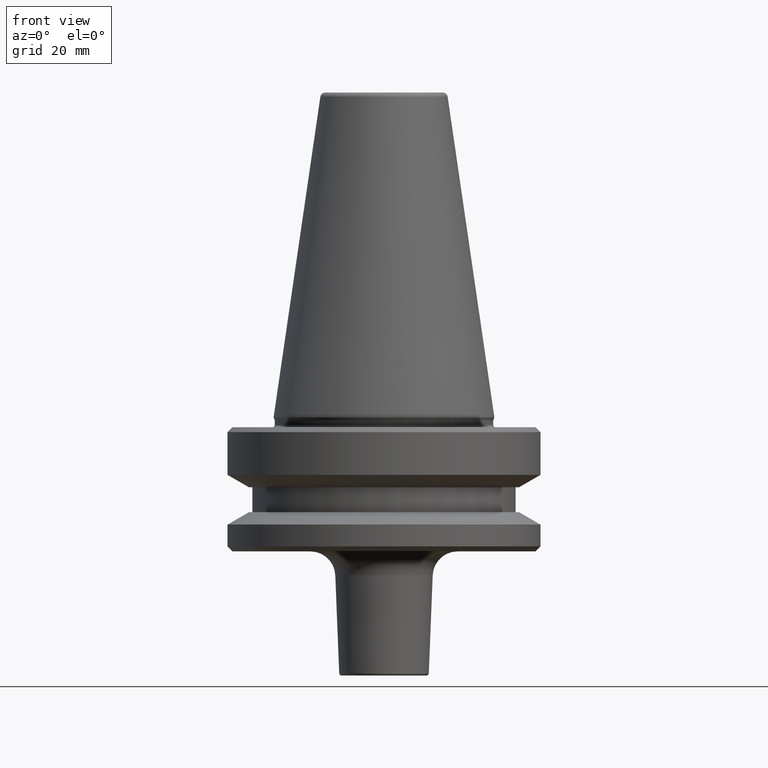
[diagram: clean part render]
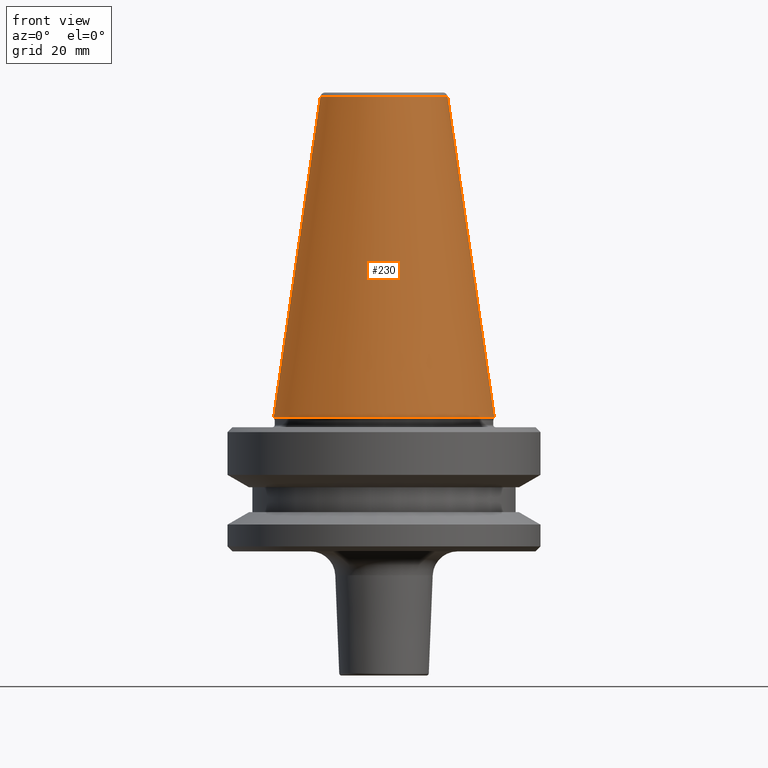
[diagram: same view with one face highlighted and labeled with its STEP entity id]
A machine part, front view. The second image highlights one B-rep face of the part: STEP entity #230.
In plain terms, the highlighted conical surface has half-angle 8.297 deg.
Its self-contained STEP definition (entity closure, byte-faithful):
#26 = DIRECTION ( 'NONE',  ( 1.000000000000000000, 0.0000000000000000000, 0.0000000000000000000 ) ) ;
#86 = LINE ( 'NONE', #647, #110 ) ;
#110 = VECTOR ( 'NONE', #214, 1000.000000000000000 ) ;
#116 = DIRECTION ( 'NONE',  ( 0.0000000000000000000, 0.0000000000000000000, -1.000000000000000000 ) ) ;
#123 = AXIS2_PLACEMENT_3D ( 'NONE', #1041, #116, #247 ) ;
#141 = DIRECTION ( 'NONE',  ( 1.000000000000000000, 0.0000000000000000000, 0.0000000000000000000 ) ) ;
#162 = CARTESIAN_POINT ( 'NONE',  ( 12.81220206925736900, 2.145409868259749100E-015, -0.8556918111122247000 ) ) ;
#170 = ORIENTED_EDGE ( 'NONE', *, *, #869, .F. ) ;
#185 = FACE_OUTER_BOUND ( 'NONE', #747, .T. ) ;
#214 = DIRECTION ( 'NONE',  ( 0.1443081888881795900, 1.767265616126607700E-017, -0.9895327920891826600 ) ) ;
#230 = ADVANCED_FACE ( 'NONE', ( #185 ), #760, .T. ) ;
#247 = DIRECTION ( 'NONE',  ( -1.000000000000000000, 0.0000000000000000000, 0.0000000000000000000 ) ) ;
#255 = CARTESIAN_POINT ( 'NONE',  ( 0.0000000000000000000, 0.0000000000000000000, -65.40000000000057400 ) ) ;
#271 = VERTEX_POINT ( 'NONE', #918 ) ;
#338 = VERTEX_POINT ( 'NONE', #162 ) ;
#370 = LINE ( 'NONE', #773, #951 ) ;
#452 = ORIENTED_EDGE ( 'NONE', *, *, #826, .T. ) ;
#454 = CARTESIAN_POINT ( 'NONE',  ( 22.22499999999993700, 0.0000000000000000000, -65.40000000000057400 ) ) ;
#495 = EDGE_CURVE ( 'NONE', #691, #723, #650, .T. ) ;
#509 = CARTESIAN_POINT ( 'NONE',  ( -22.22499999999993700, 2.721777511104985000E-015, -65.40000000000057400 ) ) ;
#517 = AXIS2_PLACEMENT_3D ( 'NONE', #255, #530, #141 ) ;
#530 = DIRECTION ( 'NONE',  ( -0.0000000000000000000, -0.0000000000000000000, 1.000000000000000000 ) ) ;
#564 = DIRECTION ( 'NONE',  ( -0.1443081888881795900, 0.0000000000000000000, -0.9895327920891826600 ) ) ;
#574 = DIRECTION ( 'NONE',  ( -0.0000000000000000000, -0.0000000000000000000, 1.000000000000000000 ) ) ;
#647 = CARTESIAN_POINT ( 'NONE',  ( 12.81220206925736900, 1.569042225414513200E-015, -0.8556918111122247000 ) ) ;
#650 = CIRCLE ( 'NONE', #517, 22.22499999999993700 ) ;
#662 = CARTESIAN_POINT ( 'NONE',  ( 0.0000000000000000000, 0.0000000000000000000, -0.8556918111122247000 ) ) ;
#691 = VERTEX_POINT ( 'NONE', #509 ) ;
#723 = VERTEX_POINT ( 'NONE', #454 ) ;
#747 = EDGE_LOOP ( 'NONE', ( #170, #768, #452, #782 ) ) ;
#760 = CONICAL_SURFACE ( 'NONE', #123, 12.81220206925736900, 0.1448138077623198300 ) ;
#768 = ORIENTED_EDGE ( 'NONE', *, *, #1003, .F. ) ;
#773 = CARTESIAN_POINT ( 'NONE',  ( -12.81220206925736900, 0.0000000000000000000, -0.8556918111122247000 ) ) ;
#782 = ORIENTED_EDGE ( 'NONE', *, *, #495, .T. ) ;
#810 = AXIS2_PLACEMENT_3D ( 'NONE', #662, #574, #26 ) ;
#826 = EDGE_CURVE ( 'NONE', #271, #691, #370, .T. ) ;
#869 = EDGE_CURVE ( 'NONE', #338, #723, #86, .T. ) ;
#909 = CIRCLE ( 'NONE', #810, 12.81220206925736900 ) ;
#918 = CARTESIAN_POINT ( 'NONE',  ( -12.81220206925736900, 0.0000000000000000000, -0.8556918111122247000 ) ) ;
#951 = VECTOR ( 'NONE', #564, 1000.000000000000000 ) ;
#1003 = EDGE_CURVE ( 'NONE', #271, #338, #909, .T. ) ;
#1041 = CARTESIAN_POINT ( 'NONE',  ( 0.0000000000000000000, 0.0000000000000000000, -0.8556918111122247000 ) ) ;